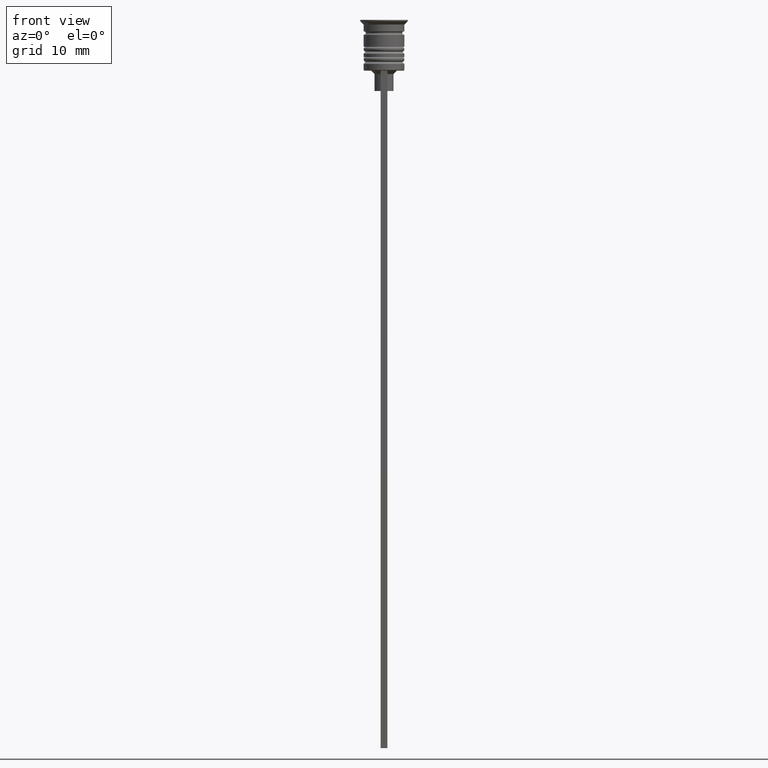
[diagram: clean part render]
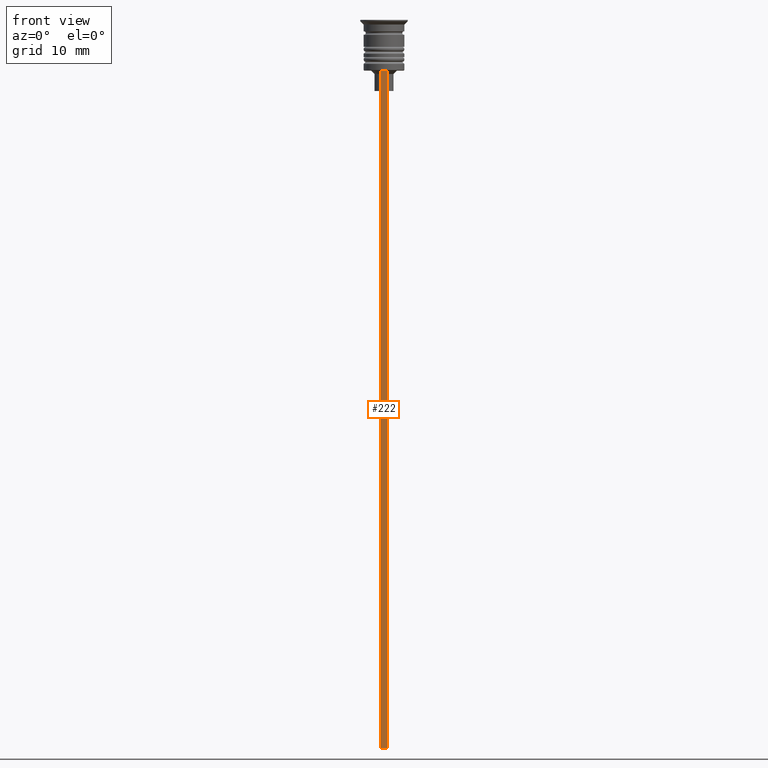
[diagram: same view with one face highlighted and labeled with its STEP entity id]
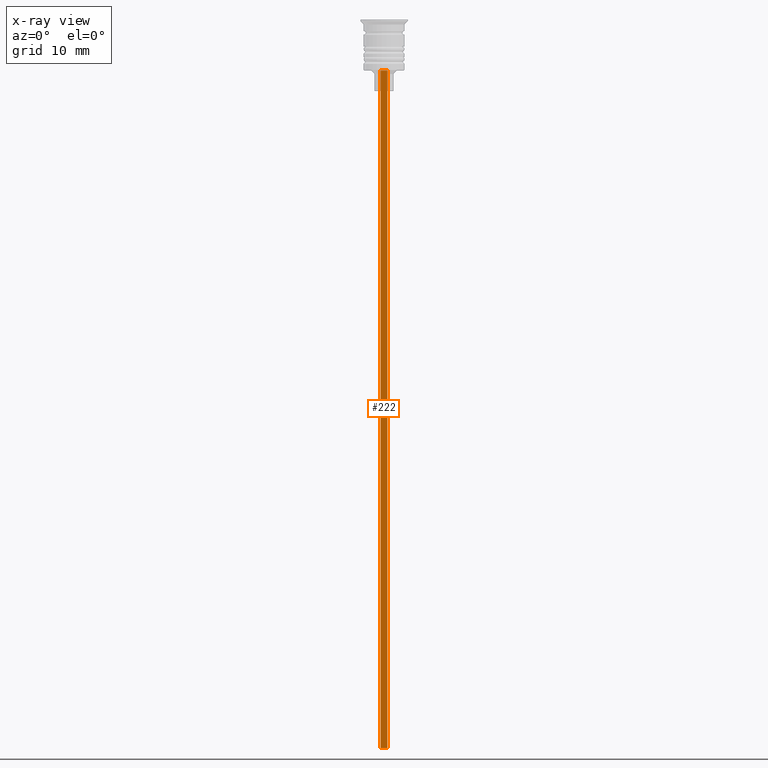
[diagram: x-ray of the same camera — body ghosted, the highlighted face saturated]
A machine part, front view. The second image highlights one B-rep face of the part: STEP entity #222.
The next image is the same camera in x-ray: the body ghosted, the highlighted face saturated — about 0% of this face is hidden behind the body in this view.
In plain terms, the highlighted planar face has unit normal (0, -1, -0).
Its self-contained STEP definition (entity closure, byte-faithful):
#32 = ORIENTED_EDGE ( 'NONE', *, *, #1831, .F. ) ;
#77 = CARTESIAN_POINT ( 'NONE',  ( 0.4999999999999998890, -3.000000000000000000, -7.500000000000000000 ) ) ;
#82 = CARTESIAN_POINT ( 'NONE',  ( 0.4999999999999998890, -3.000000000000000000, -107.5000000000000000 ) ) ;
#106 = CARTESIAN_POINT ( 'NONE',  ( 0.4999999999999998890, -3.000000000000000000, -1.417237469701779329 ) ) ;
#222 = ADVANCED_FACE ( 'NONE', ( #2287 ), #2251, .T. ) ;
#334 = DIRECTION ( 'NONE',  ( 0.000000000000000000, -1.000000000000000000, -0.000000000000000000 ) ) ;
#401 = VERTEX_POINT ( 'NONE', #1139 ) ;
#588 = DIRECTION ( 'NONE',  ( -1.000000000000000000, 0.000000000000000000, 0.000000000000000000 ) ) ;
#636 = VERTEX_POINT ( 'NONE', #1206 ) ;
#741 = VERTEX_POINT ( 'NONE', #1250 ) ;
#786 = DIRECTION ( 'NONE',  ( 1.000000000000000000, 0.000000000000000000, 0.000000000000000000 ) ) ;
#788 = CARTESIAN_POINT ( 'NONE',  ( -0.5000000000000001110, -3.000000000000000000, -1.417237469701779329 ) ) ;
#896 = EDGE_CURVE ( 'NONE', #401, #636, #1135, .T. ) ;
#972 = LINE ( 'NONE', #788, #1513 ) ;
#1008 = VERTEX_POINT ( 'NONE', #1714 ) ;
#1013 = EDGE_CURVE ( 'NONE', #741, #401, #1195, .T. ) ;
#1024 = CARTESIAN_POINT ( 'NONE',  ( 0.4999999999999998890, -3.000000000000000000, -1.417237469701779329 ) ) ;
#1135 = LINE ( 'NONE', #82, #1478 ) ;
#1139 = CARTESIAN_POINT ( 'NONE',  ( 0.4999999999999998890, -3.000000000000000000, -107.5000000000000000 ) ) ;
#1145 = DIRECTION ( 'NONE',  ( 0.000000000000000000, 0.000000000000000000, -1.000000000000000000 ) ) ;
#1195 = LINE ( 'NONE', #106, #1336 ) ;
#1206 = CARTESIAN_POINT ( 'NONE',  ( -0.5000000000000001110, -3.000000000000000000, -107.5000000000000000 ) ) ;
#1250 = CARTESIAN_POINT ( 'NONE',  ( 0.4999999999999998890, -3.000000000000000000, -7.500000000000000000 ) ) ;
#1336 = VECTOR ( 'NONE', #1371, 1000.000000000000000 ) ;
#1371 = DIRECTION ( 'NONE',  ( 0.000000000000000000, 0.000000000000000000, -1.000000000000000000 ) ) ;
#1405 = EDGE_CURVE ( 'NONE', #1008, #636, #972, .T. ) ;
#1478 = VECTOR ( 'NONE', #588, 1000.000000000000000 ) ;
#1513 = VECTOR ( 'NONE', #1145, 1000.000000000000000 ) ;
#1573 = ORIENTED_EDGE ( 'NONE', *, *, #896, .F. ) ;
#1714 = CARTESIAN_POINT ( 'NONE',  ( -0.5000000000000001110, -3.000000000000000000, -7.500000000000000000 ) ) ;
#1730 = DIRECTION ( 'NONE',  ( 0.000000000000000000, 0.000000000000000000, -1.000000000000000000 ) ) ;
#1831 = EDGE_CURVE ( 'NONE', #1008, #741, #1887, .T. ) ;
#1838 = ORIENTED_EDGE ( 'NONE', *, *, #1405, .T. ) ;
#1887 = LINE ( 'NONE', #77, #1974 ) ;
#1974 = VECTOR ( 'NONE', #786, 1000.000000000000000 ) ;
#2052 = ORIENTED_EDGE ( 'NONE', *, *, #1013, .F. ) ;
#2091 = EDGE_LOOP ( 'NONE', ( #32, #1838, #1573, #2052 ) ) ;
#2157 = AXIS2_PLACEMENT_3D ( 'NONE', #1024, #334, #1730 ) ;
#2251 = PLANE ( 'NONE',  #2157 ) ;
#2287 = FACE_OUTER_BOUND ( 'NONE', #2091, .T. ) ;